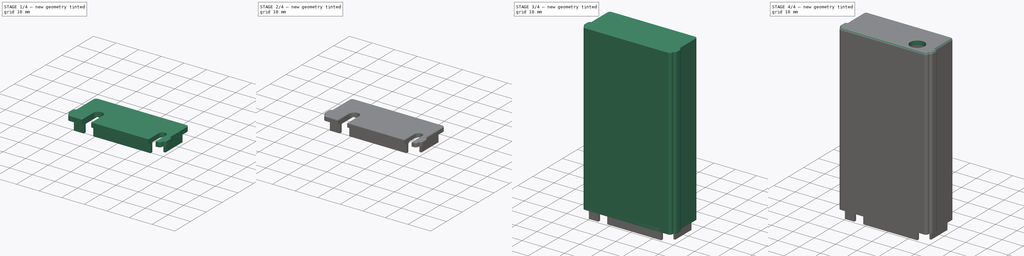
[diagram: build sequence overview — one tinted view per stage of 4, left to right]
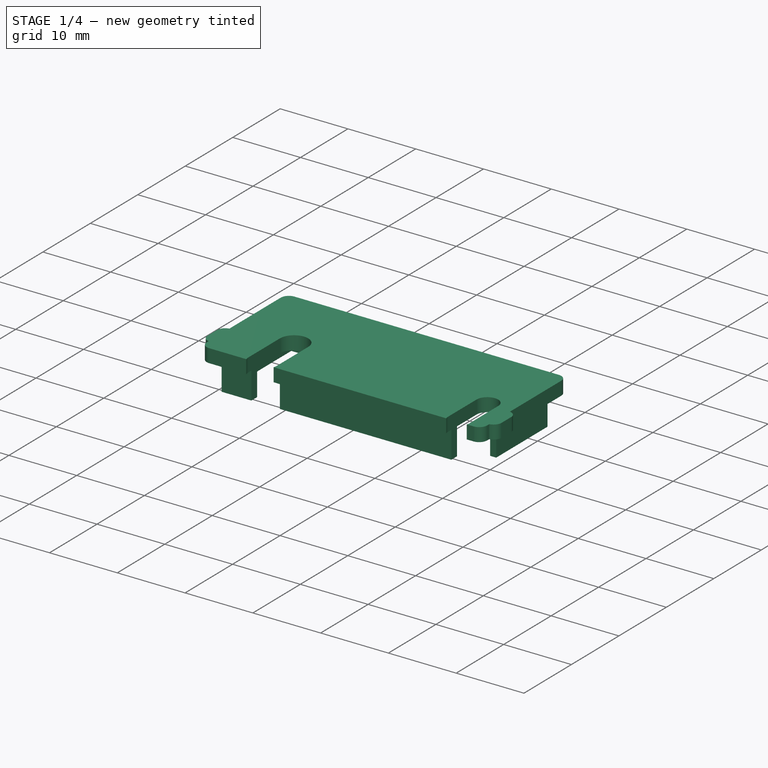
[diagram: stage 1 of 4 — iso view after this stage's code; geometry added in this stage tinted green]
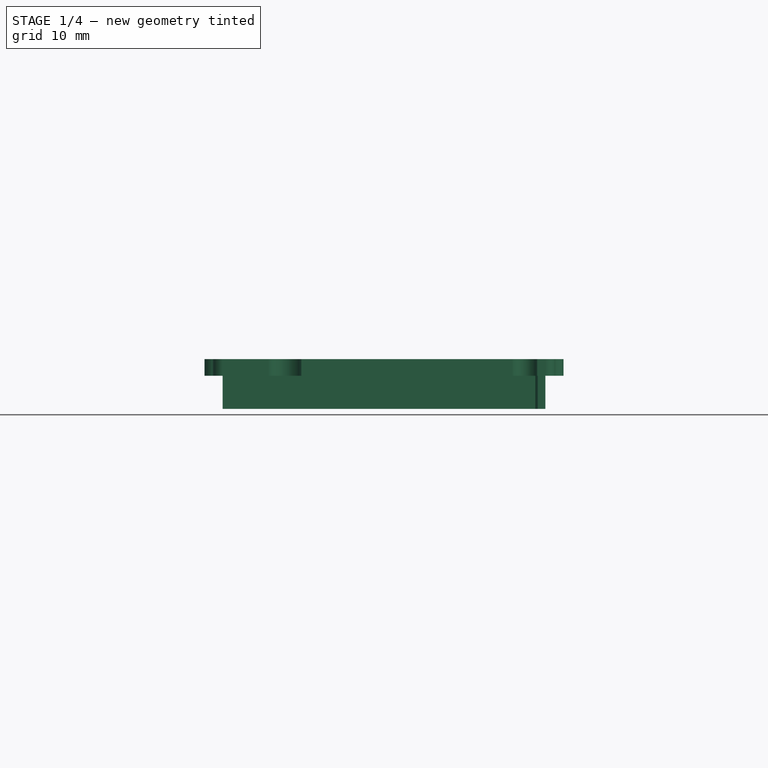
[diagram: stage 1 of 4 — front view after this stage's code; geometry added in this stage tinted green]
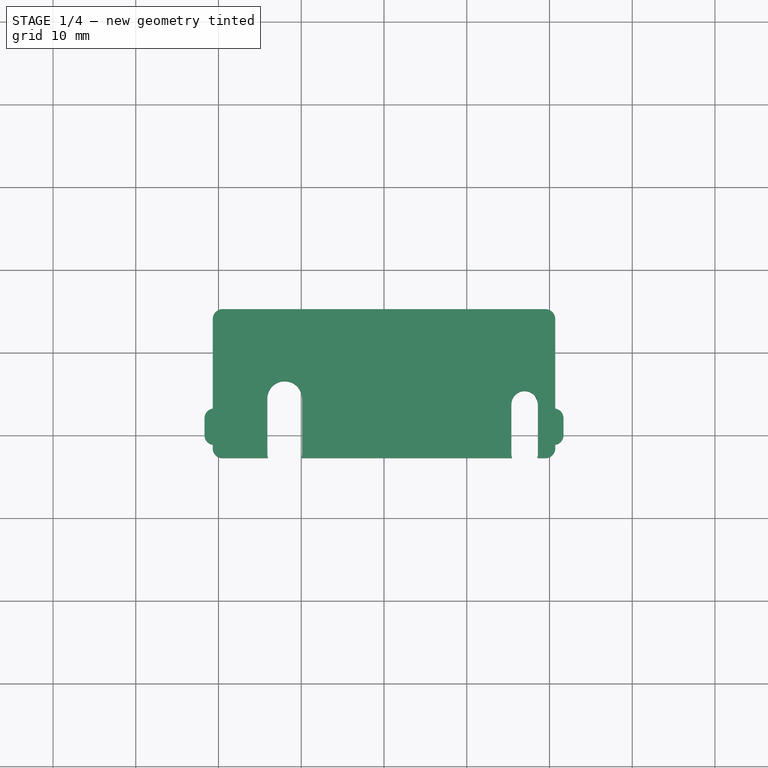
[diagram: stage 1 of 4 — top view after this stage's code; geometry added in this stage tinted green]
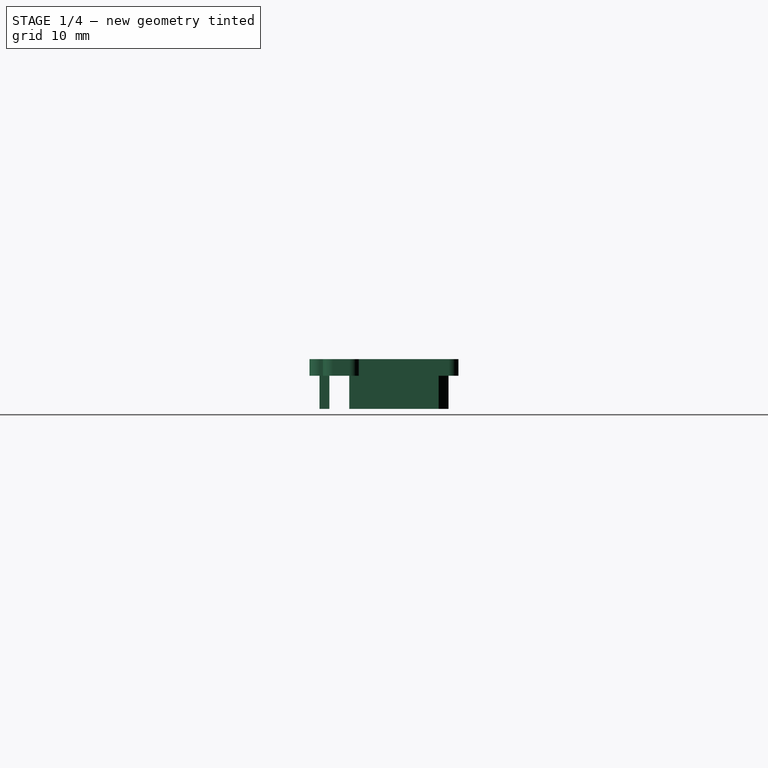
[diagram: stage 1 of 4 — right view after this stage's code; geometry added in this stage tinted green]
FCSTD DOCUMENT  (FreeCAD 0.19R)
Label: Enclosure
License: All rights reserved
LicenseURL: http://en.wikipedia.org/wiki/All_rights_reserved
objects: Sketcher::SketchObject×7, PartDesign::Pocket×4, PartDesign::Fillet×4, PartDesign::Pad×3, Part::Offset2D×2, PartDesign::FeatureBase×2, PartDesign::Body×2
note: 35 computed .brp shape members not serialized (recipe doc carries the construction recipe); baked Part::Feature solids carry a one-line shape summary decoded from their .brp

FEATURE [PartDesign::Body] Body
  BaseFeature = -> Offset2D
  Group = -> [BaseFeature,Sketch,Pad,Pocket,Fillet,Sketch001,Pocket001,Sketch002,Sketch003,Pocket002]
  Origin = -> Origin001
  Tip = -> Pocket002
FEATURE [Sketcher::SketchObject] Sketch004
  FullyConstrained = true
  MapMode = 2
  sketch-geometry (24):
    g0: LineSegment StartX=-20.5 StartY=2 StartZ=0 EndX=20.5 EndY=2 EndZ=0
    g1: LineSegment StartX=20.5 StartY=2 StartZ=0 EndX=20.5 EndY=0 EndZ=0
    g2: LineSegment StartX=20.5 StartY=0 StartZ=0 EndX=-20.5 EndY=0 EndZ=0
    g3: LineSegment StartX=-20.5 StartY=0 StartZ=0 EndX=-20.5 EndY=2 EndZ=0
    g4: LineSegment StartX=-19.5 StartY=14 StartZ=0 EndX=19.5 EndY=14 EndZ=0
    g5: LineSegment StartX=19.5 StartY=14 StartZ=0 EndX=19.5 EndY=2 EndZ=0
    g6: LineSegment StartX=19.5 StartY=2 StartZ=0 EndX=-19.5 EndY=2 EndZ=0
    g7: LineSegment StartX=-19.5 StartY=2 StartZ=0 EndX=-19.5 EndY=14 EndZ=0
    g8: LineSegment StartX=-19.5 StartY=0 StartZ=0 EndX=19.5 EndY=0 EndZ=0
    g9: LineSegment StartX=19.5 StartY=0 StartZ=0 EndX=19.5 EndY=-1.6 EndZ=0
    g10: LineSegment StartX=19.5 StartY=-1.6 StartZ=0 EndX=-19.5 EndY=-1.6 EndZ=0
    g11: LineSegment StartX=-19.5 StartY=-1.6 StartZ=0 EndX=-19.5 EndY=0 EndZ=0
    g12: LineSegment StartX=-20.5 StartY=2 StartZ=0 EndX=-19.5 EndY=2 EndZ=0
    g13: LineSegment StartX=-19.5 StartY=2 StartZ=0 EndX=-19.5 EndY=14 EndZ=0
    g14: LineSegment StartX=-19.5 StartY=14 StartZ=0 EndX=19.5 EndY=14 EndZ=0
    g15: LineSegment StartX=19.5 StartY=14 StartZ=0 EndX=19.5 EndY=2 EndZ=0
    g16: LineSegment StartX=19.5 StartY=2 StartZ=0 EndX=20.5 EndY=2 EndZ=0
    g17: LineSegment StartX=20.5 StartY=2 StartZ=0 EndX=20.5 EndY=0 EndZ=0
    g18: LineSegment StartX=20.5 StartY=0 StartZ=0 EndX=19.5 EndY=0 EndZ=0
    g19: LineSegment StartX=19.5 StartY=0 StartZ=0 EndX=19.5 EndY=-1.6 EndZ=0
    g20: LineSegment StartX=19.5 StartY=-1.6 StartZ=0 EndX=-19.5 EndY=-1.6 EndZ=0
    g21: LineSegment StartX=-19.5 StartY=-1.6 StartZ=0 EndX=-19.5 EndY=0 EndZ=0
    g22: LineSegment StartX=-19.5 StartY=0 StartZ=0 EndX=-20.5 EndY=0 EndZ=0
    g23: LineSegment StartX=-20.5 StartY=0 StartZ=0 EndX=-20.5 EndY=2 EndZ=0
  constraints (60):
    c: Coincident(g0,g1)
    c: Coincident(g1,g2)
    c: Coincident(g2,g3)
    c: Coincident(g3,g0)
    c: Horizontal(g0)
    c: Vertical(g1)
    c: Vertical(g3)
    c: DistanceX(g0,g0) = 41
    c: DistanceY(g3,g3) = 2
    c: Symmetric(g2,g1,g-2)
    c: PointOnObject(g1,g-1)
    c: Coincident(g4,g5)
    c: Coincident(g5,g6)
    c: Coincident(g6,g7)
    c: Coincident(g7,g4)
    c: Horizontal(g4)
    c: Horizontal(g6)
    c: Vertical(g5)
    c: Vertical(g7)
    c: DistanceX(g5,g0) = 1
    c: DistanceX(g0,g6) = 1
    c: DistanceY(g5,g5) = 12
    c: PointOnObject(g6,g0)
    c: Coincident(g8,g9)
    c: Coincident(g9,g10)
    c: Coincident(g10,g11)
    c: Coincident(g11,g8)
    c: Horizontal(g8)
    c: Horizontal(g10)
    c: Vertical(g9)
    c: Vertical(g11)
    c: DistanceX(g8,g1) = 1
    c: DistanceX(g2,g8) = 1
    c: DistanceY(g11,g11) = 1.6
    c: PointOnObject(g8,g2)
    c: Coincident(g0,g12)
    c: Coincident(g12,g6)
    c: Coincident(g12,g13)
    c: Coincident(g13,g4)
    c: Coincident(g13,g14)
    c: Coincident(g14,g4)
    c: Coincident(g14,g15)
    c: Coincident(g15,g5)
    c: Coincident(g15,g16)
    c: Coincident(g16,g0)
    c: Coincident(g16,g17)
    c: Coincident(g17,g1)
    c: Coincident(g17,g18)
    c: PointOnObject(g18,g2)
    c: Coincident(g18,g19)
    c: Coincident(g19,g9)
    c: Vertical(g19)
    c: Coincident(g19,g20)
    c: Coincident(g20,g10)
    c: Coincident(g20,g21)
    c: Coincident(g21,g8)
    c: Coincident(g21,g22)
    c: Coincident(g22,g2)
    c: Coincident(g22,g23)
    c: Coincident(g23,g12)
FEATURE [Part::Offset2D] Offset2D001
  Fill = false
  Intersection = false
  Join = 0
  Mode = 1
  SelfIntersection = false
  Source = -> Sketch004
  Value = 1.2
FEATURE [PartDesign::FeatureBase] BaseFeature001
  BaseFeature = -> Offset2D001
FEATURE [PartDesign::Pad] Pad001
  BaseFeature = -> BaseFeature001
  Direction = (1,1,1)
  Length = 2
  Length2 = 100
  Profile = -> BaseFeature001
  Type = 0
FEATURE [Sketcher::SketchObject] Sketch005
  ExternalGeometry = -> [Sketch004]
  FullyConstrained = false
  MapMode = 5
  Placement = pos=(0,0,0) rot=(1,0,0;3.14159rad)
  Support = -> [Pad001]
  sketch-geometry (14):
    g0: LineSegment StartX=-18.5 StartY=1.6 StartZ=0 EndX=18.5 EndY=1.6 EndZ=0
    g1: LineSegment StartX=18.5 StartY=1.6 StartZ=0 EndX=18.5 EndY=0.4 EndZ=0
    g2: LineSegment StartX=18.5 StartY=0.4 StartZ=0 EndX=-18.5 EndY=0.4 EndZ=0
    g3: LineSegment StartX=-18.5 StartY=0.4 StartZ=0 EndX=-18.5 EndY=1.6 EndZ=0
    g4: LineSegment StartX=-18.3 StartY=-12.8 StartZ=0 EndX=18.3 EndY=-12.8 EndZ=0
    g5: LineSegment StartX=18.3 StartY=-14 StartZ=0 EndX=-18.3 EndY=-14 EndZ=0
    g6: LineSegment StartX=-19.5 StartY=-12.8 StartZ=0 EndX=-19.5 EndY=-2 EndZ=0
    g7: LineSegment StartX=-19.5 StartY=-2 StartZ=0 EndX=-18.3 EndY=-2 EndZ=0
    g8: LineSegment StartX=-18.3 StartY=-2 StartZ=0 EndX=-18.3 EndY=-12.8 EndZ=0
    g9: LineSegment StartX=19.5 StartY=-2 StartZ=0 EndX=18.3 EndY=-2 EndZ=0
    g10: LineSegment StartX=-19.5 StartY=-12.8 StartZ=0 EndX=-18.3 EndY=-14 EndZ=0
    g11: LineSegment StartX=18.3 StartY=-14 StartZ=0 EndX=19.5 EndY=-12.8 EndZ=0
    g12: LineSegment StartX=18.3 StartY=-2 StartZ=0 EndX=18.3 EndY=-12.8 EndZ=0
    g13: LineSegment StartX=19.5 StartY=-2 StartZ=0 EndX=19.5 EndY=-12.8 EndZ=0
  constraints (32):
    c: Coincident(g0,g1)
    c: Coincident(g1,g2)
    c: Coincident(g2,g3)
    c: Coincident(g3,g0)
    c: Horizontal(g2)
    c: Vertical(g1)
    c: Vertical(g3)
    c: DistanceY(g0,g-4) = 0
    c: DistanceX(g-4,g0) = 1
    c: Symmetric(g0,g0,g-2)
    c: DistanceY(g1,g0) = 1.2
    c: Horizontal(g5)
    c: DistanceY(g-5,g5) = 0
    c: DistanceX(g-5,g5) = 1.2
    c: Symmetric(g4,g4,g-2)
    c: DistanceY(g5,g4) = 1.2
    c: Coincident(g6,g7)
    c: Coincident(g7,g8)
    c: Horizontal(g7)
    c: Vertical(g6)
    c: Vertical(g8)
    c: Horizontal(g9)
    c: Coincident(g6,g-8)
    c: Coincident(g10,g5)
    c: Coincident(g4,g8)
    c: DistanceX(g6,g4) = 1.2
    c: Coincident(g12,g9)
    c: Coincident(g12,g4)
    c: Vertical(g12)
    c: Coincident(g13,g9)
    c: Coincident(g13,g11)
    c: Vertical(g13)
FEATURE [PartDesign::Pad] Pad002
  BaseFeature = -> Pad001
  Direction = (1,1,1)
  Length = 4
  Length2 = 100
  Profile = -> Sketch005
  Type = 0
FEATURE [Sketcher::SketchObject] Sketch006
  FullyConstrained = true
  MapMode = 5
  Placement = pos=(0,0,0) rot=(1,0,0;3.14159rad)
  Support = -> [Pad002]
  sketch-geometry (8):
    g0: ArcOfCircle CenterX=-12 CenterY=2.21 CenterZ=0 NormalX=0 NormalY=0 NormalZ=1 AngleXU=0 Radius=2.1 StartAngle=3.52e-14 EndAngle=3.14159
    g1: ArcOfCircle CenterX=-12 CenterY=-4.39 CenterZ=0 NormalX=0 NormalY=0 NormalZ=1 AngleXU=0 Radius=2.1 StartAngle=3.14159 EndAngle=6.28319
    g2: LineSegment StartX=-14.1 StartY=2.21 StartZ=0 EndX=-14.1 EndY=-4.39 EndZ=0
    g3: LineSegment StartX=-9.9 StartY=2.21 StartZ=0 EndX=-9.9 EndY=-4.39 EndZ=0
    g4: ArcOfCircle CenterX=17 CenterY=2.3 CenterZ=0 NormalX=0 NormalY=0 NormalZ=1 AngleXU=0 Radius=1.6 StartAngle=3.39e-14 EndAngle=3.14159
    g5: ArcOfCircle CenterX=17 CenterY=-3.7 CenterZ=0 NormalX=0 NormalY=0 NormalZ=1 AngleXU=0 Radius=1.6 StartAngle=3.14159 EndAngle=6.28319
    g6: LineSegment StartX=15.4 StartY=2.3 StartZ=0 EndX=15.4 EndY=-3.7 EndZ=0
    g7: LineSegment StartX=18.6 StartY=2.3 StartZ=0 EndX=18.6 EndY=-3.7 EndZ=0
  constraints (20):
    c: Tangent(g0,g3) = 1.5708
    c: Tangent(g0,g2) = -1.5708
    c: Tangent(g2,g1) = -1.5708
    c: Tangent(g3,g1) = 1.5708
    c: Vertical(g2)
    c: Equal(g0,g1)
    c: DistanceX(g0,g0) = 4.2
    c: Tangent(g4,g7) = 1.5708
    c: Tangent(g4,g6) = -1.5708
    c: Tangent(g6,g5) = -1.5708
    c: Tangent(g7,g5) = 1.5708
    c: Vertical(g6)
    c: Equal(g4,g5)
    c: DistanceX(g4,g4) = 3.2
    c: DistanceX(g0,g-1) = 12
    c: DistanceY(g-1,g0) = 2.21
    c: DistanceY(g1,g0) = 6.6
    c: DistanceY(g5,g4) = 6
    c: DistanceY(g-1,g4) = 2.3
    c: DistanceX(g-1,g5) = 17
FEATURE [PartDesign::Pocket] Pocket003
  BaseFeature = -> Pad002
  Length = 5
  Length2 = 5
  Profile = -> Sketch006
  Type = 4
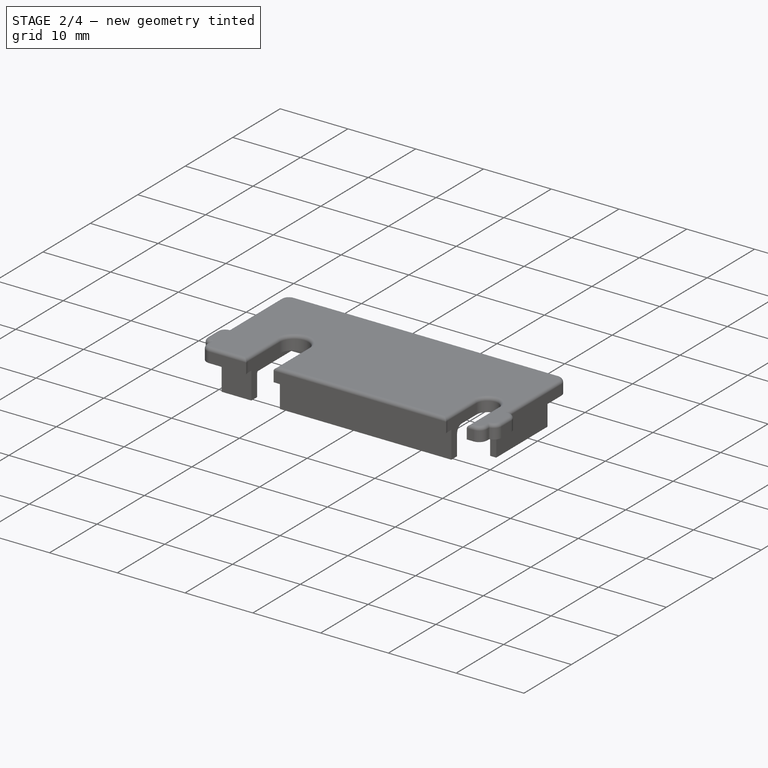
[diagram: stage 2 of 4 — iso view after this stage's code; geometry added in this stage tinted green]
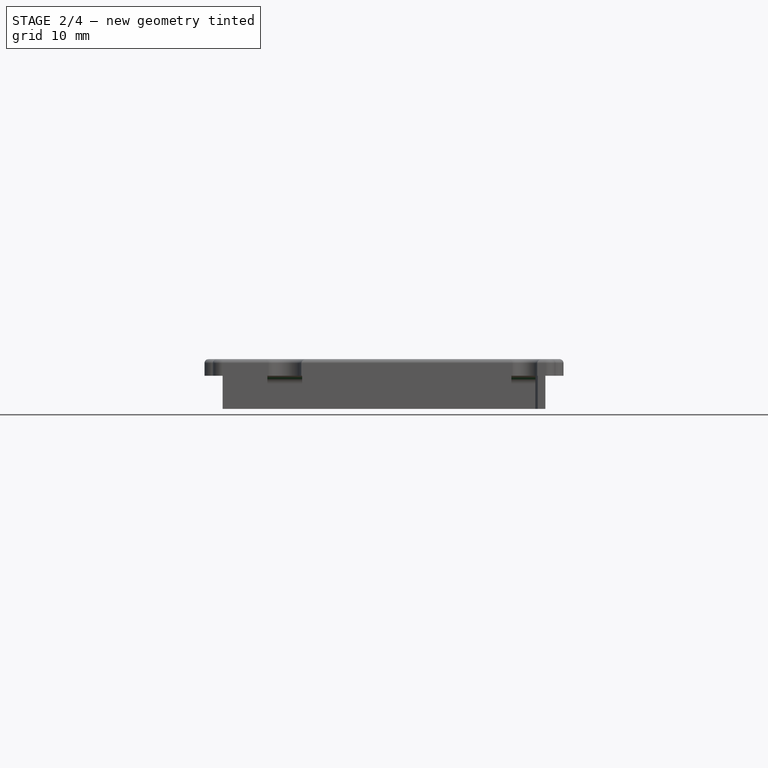
[diagram: stage 2 of 4 — front view after this stage's code; geometry added in this stage tinted green]
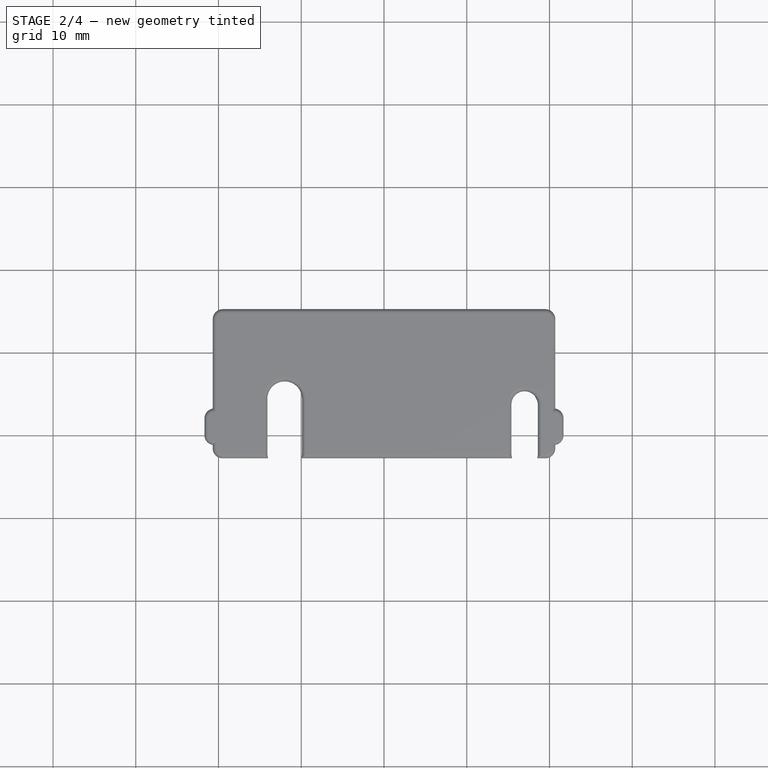
[diagram: stage 2 of 4 — top view after this stage's code; geometry added in this stage tinted green]
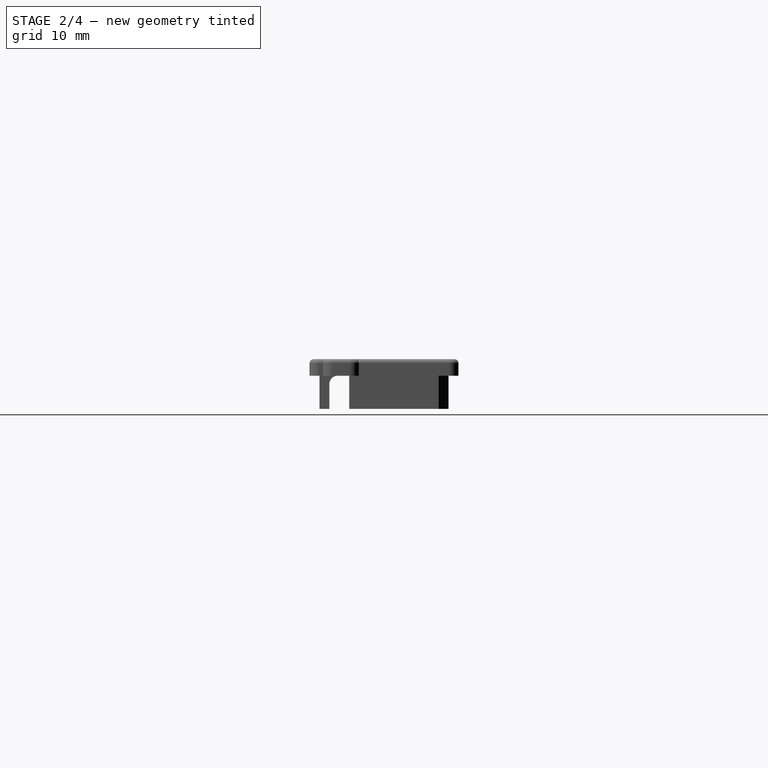
[diagram: stage 2 of 4 — right view after this stage's code; geometry added in this stage tinted green]
FEATURE [PartDesign::Fillet] Fillet001
  Base = -> Pocket003 [Face5]
  BaseFeature = -> Pocket003
  Radius = 0.49
  SupportTransform = false
FEATURE [PartDesign::Fillet] Fillet002
  Base = -> Fillet001 [Edge31,Edge35]
  BaseFeature = -> Fillet001
  Radius = 1
  SupportTransform = false
FEATURE [PartDesign::Fillet] Fillet003
  Base = -> Fillet002 [Edge18]
  BaseFeature = -> Fillet002
  Radius = 1
  SupportTransform = false
FEATURE [PartDesign::Body] Body001
  BaseFeature = -> Offset2D001
  Group = -> [BaseFeature001,Sketch004,Pad001,Sketch005,Pad002,Sketch006,Pocket003,Fillet001,Fillet002,Fillet003]
  Origin = -> Origin
  Tip = -> Fillet003
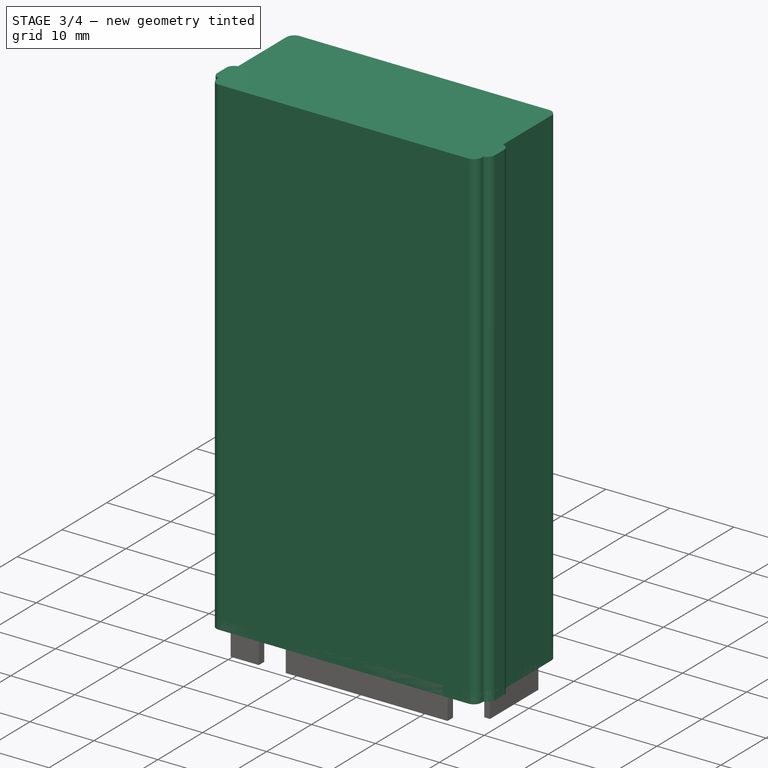
[diagram: stage 3 of 4 — iso view after this stage's code; geometry added in this stage tinted green]
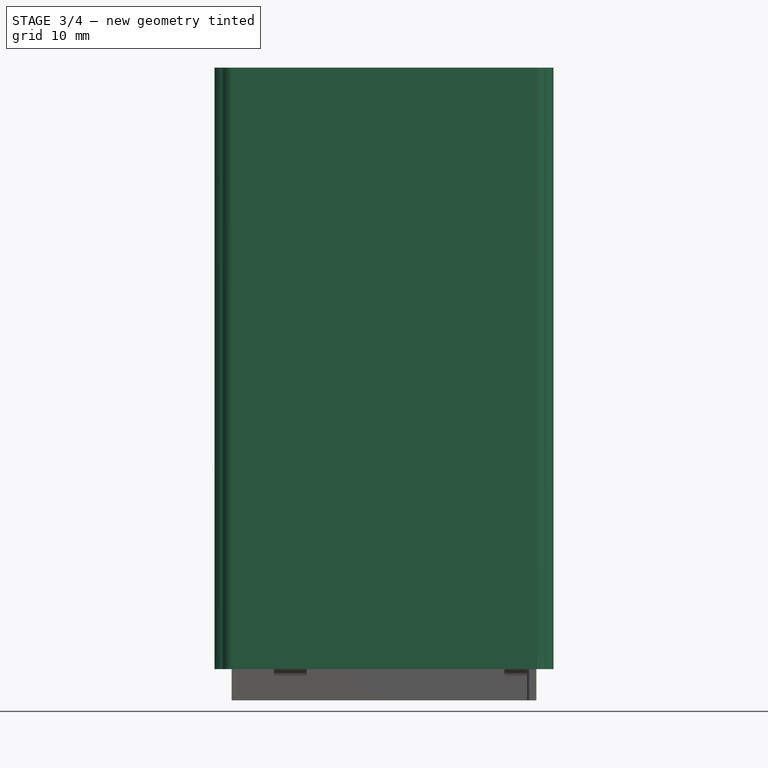
[diagram: stage 3 of 4 — front view after this stage's code; geometry added in this stage tinted green]
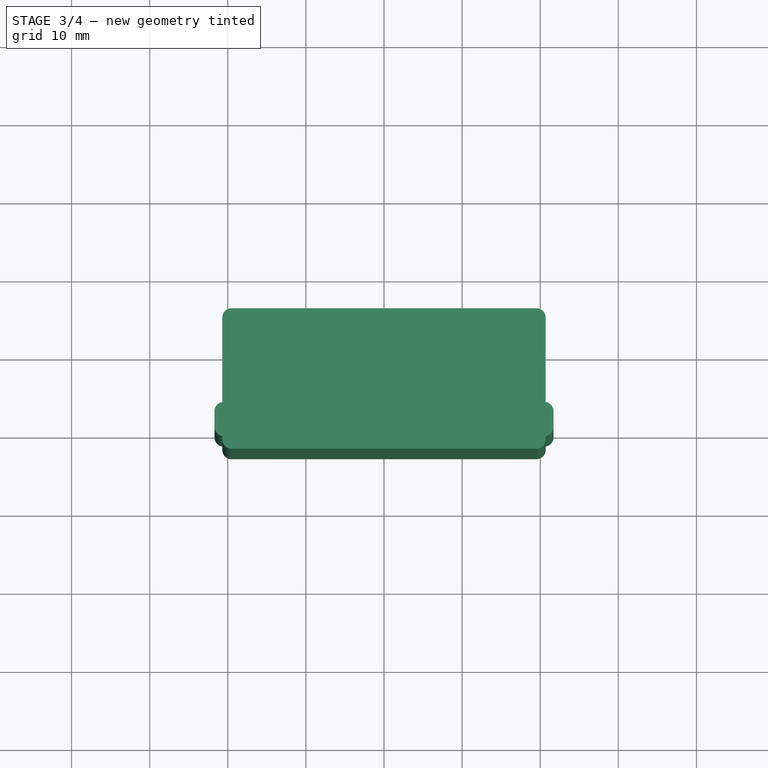
[diagram: stage 3 of 4 — top view after this stage's code; geometry added in this stage tinted green]
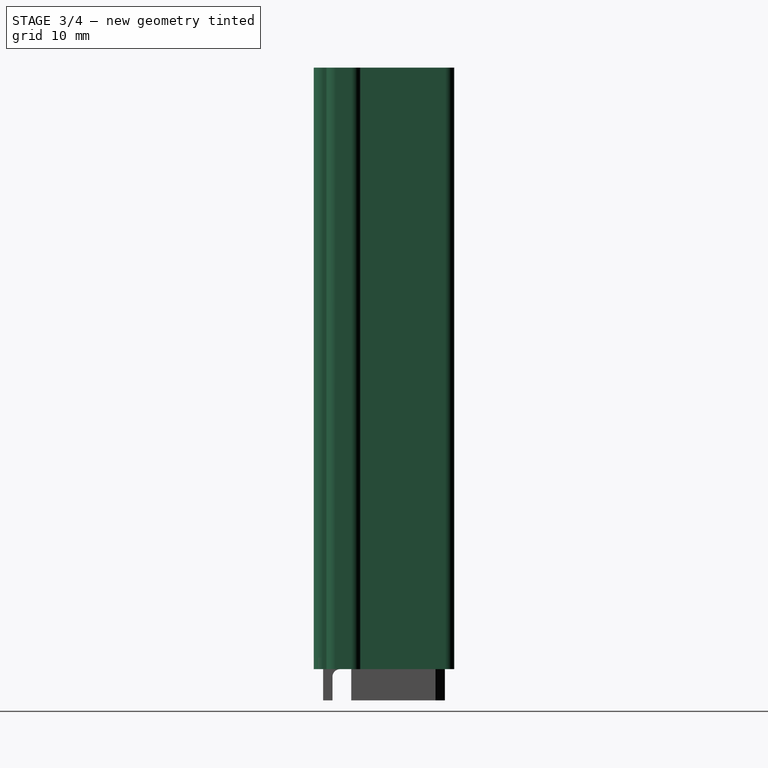
[diagram: stage 3 of 4 — right view after this stage's code; geometry added in this stage tinted green]
FEATURE [Sketcher::SketchObject] Sketch
  FullyConstrained = true
  MapMode = 2
  sketch-geometry (24):
    g0: LineSegment StartX=-20.5 StartY=2 StartZ=0 EndX=20.5 EndY=2 EndZ=0
    g1: LineSegment StartX=20.5 StartY=2 StartZ=0 EndX=20.5 EndY=0 EndZ=0
    g2: LineSegment StartX=20.5 StartY=0 StartZ=0 EndX=-20.5 EndY=0 EndZ=0
    g3: LineSegment StartX=-20.5 StartY=0 StartZ=0 EndX=-20.5 EndY=2 EndZ=0
    g4: LineSegment StartX=-19.5 StartY=14 StartZ=0 EndX=19.5 EndY=14 EndZ=0
    g5: LineSegment StartX=19.5 StartY=14 StartZ=0 EndX=19.5 EndY=2 EndZ=0
    g6: LineSegment StartX=19.5 StartY=2 StartZ=0 EndX=-19.5 EndY=2 EndZ=0
    g7: LineSegment StartX=-19.5 StartY=2 StartZ=0 EndX=-19.5 EndY=14 EndZ=0
    g8: LineSegment StartX=-19.5 StartY=0 StartZ=0 EndX=19.5 EndY=0 EndZ=0
    g9: LineSegment StartX=19.5 StartY=0 StartZ=0 EndX=19.5 EndY=-1.6 EndZ=0
    g10: LineSegment StartX=19.5 StartY=-1.6 StartZ=0 EndX=-19.5 EndY=-1.6 EndZ=0
    g11: LineSegment StartX=-19.5 StartY=-1.6 StartZ=0 EndX=-19.5 EndY=0 EndZ=0
    g12: LineSegment StartX=-20.5 StartY=2 StartZ=0 EndX=-19.5 EndY=2 EndZ=0
    g13: LineSegment StartX=-19.5 StartY=2 StartZ=0 EndX=-19.5 EndY=14 EndZ=0
    g14: LineSegment StartX=-19.5 StartY=14 StartZ=0 EndX=19.5 EndY=14 EndZ=0
    g15: LineSegment StartX=19.5 StartY=14 StartZ=0 EndX=19.5 EndY=2 EndZ=0
    g16: LineSegment StartX=19.5 StartY=2 StartZ=0 EndX=20.5 EndY=2 EndZ=0
    g17: LineSegment StartX=20.5 StartY=2 StartZ=0 EndX=20.5 EndY=0 EndZ=0
    g18: LineSegment StartX=20.5 StartY=0 StartZ=0 EndX=19.5 EndY=0 EndZ=0
    g19: LineSegment StartX=19.5 StartY=0 StartZ=0 EndX=19.5 EndY=-1.6 EndZ=0
    g20: LineSegment StartX=19.5 StartY=-1.6 StartZ=0 EndX=-19.5 EndY=-1.6 EndZ=0
    g21: LineSegment StartX=-19.5 StartY=-1.6 StartZ=0 EndX=-19.5 EndY=0 EndZ=0
    g22: LineSegment StartX=-19.5 StartY=0 StartZ=0 EndX=-20.5 EndY=0 EndZ=0
    g23: LineSegment StartX=-20.5 StartY=0 StartZ=0 EndX=-20.5 EndY=2 EndZ=0
  constraints (60):
    c: Coincident(g0,g1)
    c: Coincident(g1,g2)
    c: Coincident(g2,g3)
    c: Coincident(g3,g0)
    c: Horizontal(g0)
    c: Vertical(g1)
    c: Vertical(g3)
    c: DistanceX(g0,g0) = 41
    c: DistanceY(g3,g3) = 2
    c: Symmetric(g2,g1,g-2)
    c: PointOnObject(g1,g-1)
    c: Coincident(g4,g5)
    c: Coincident(g5,g6)
    c: Coincident(g6,g7)
    c: Coincident(g7,g4)
    c: Horizontal(g4)
    c: Horizontal(g6)
    c: Vertical(g5)
    c: Vertical(g7)
    c: DistanceX(g5,g0) = 1
    c: DistanceX(g0,g6) = 1
    c: DistanceY(g5,g5) = 12
    c: PointOnObject(g6,g0)
    c: Coincident(g8,g9)
    c: Coincident(g9,g10)
    c: Coincident(g10,g11)
    c: Coincident(g11,g8)
    c: Horizontal(g8)
    c: Horizontal(g10)
    c: Vertical(g9)
    c: Vertical(g11)
    c: DistanceX(g8,g1) = 1
    c: DistanceX(g2,g8) = 1
    c: DistanceY(g11,g11) = 1.6
    c: PointOnObject(g8,g2)
    c: Coincident(g0,g12)
    c: Coincident(g12,g6)
    c: Coincident(g12,g13)
    c: Coincident(g13,g4)
    c: Coincident(g13,g14)
    c: Coincident(g14,g4)
    c: Coincident(g14,g15)
    c: Coincident(g15,g5)
    c: Coincident(g15,g16)
    c: Coincident(g16,g0)
    c: Coincident(g16,g17)
    c: Coincident(g17,g1)
    c: Coincident(g17,g18)
    c: PointOnObject(g18,g2)
    c: Coincident(g18,g19)
    c: Coincident(g19,g9)
    c: Vertical(g19)
    c: Coincident(g19,g20)
    c: Coincident(g20,g10)
    c: Coincident(g20,g21)
    c: Coincident(g21,g8)
    c: Coincident(g21,g22)
    c: Coincident(g22,g2)
    c: Coincident(g22,g23)
    c: Coincident(g23,g12)
FEATURE [Part::Offset2D] Offset2D
  Fill = false
  Intersection = false
  Join = 0
  Mode = 1
  SelfIntersection = false
  Source = -> Sketch
  Value = 1.2
FEATURE [PartDesign::FeatureBase] BaseFeature
  BaseFeature = -> Offset2D
FEATURE [PartDesign::Pad] Pad
  BaseFeature = -> BaseFeature
  Direction = (1,1,1)
  Length = 77
  Length2 = 100
  Profile = -> BaseFeature
  Type = 0
FEATURE [PartDesign::Pocket] Pocket
  BaseFeature = -> Pad
  Length = 75
  Length2 = 100
  Profile = -> Sketch
  Reversed = true
  Type = 0
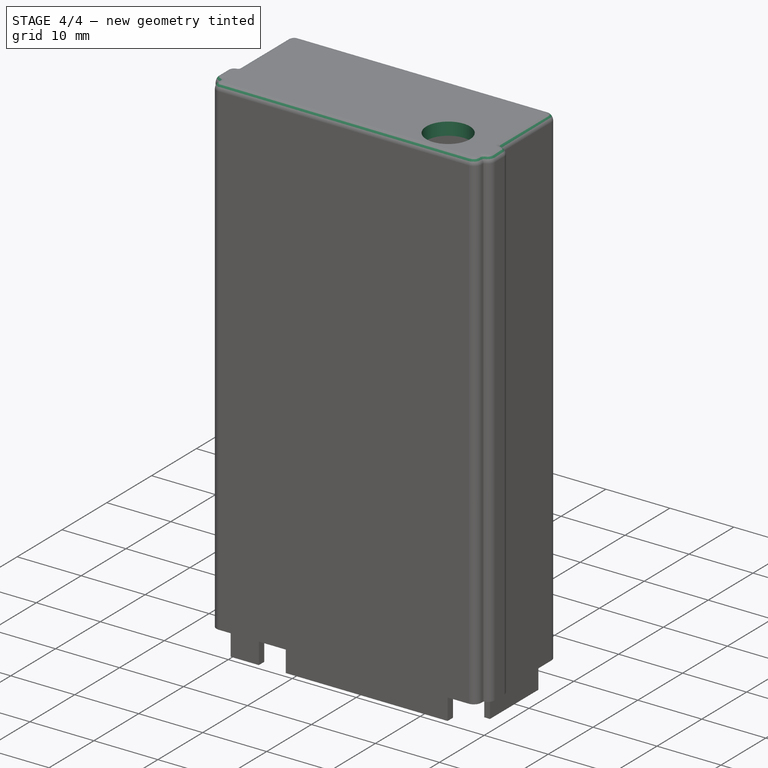
[diagram: stage 4 of 4 — iso view after this stage's code; geometry added in this stage tinted green]
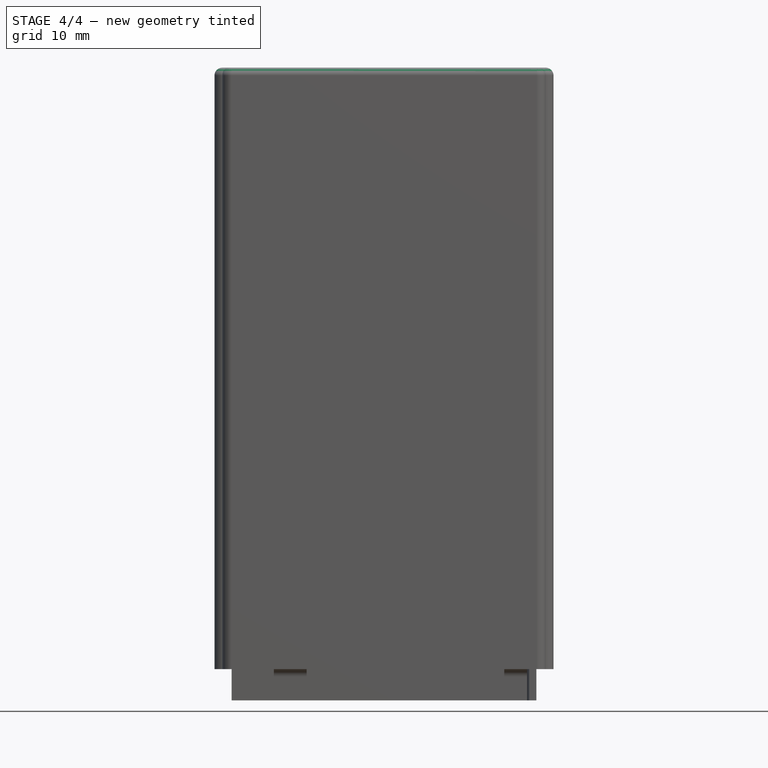
[diagram: stage 4 of 4 — front view after this stage's code; geometry added in this stage tinted green]
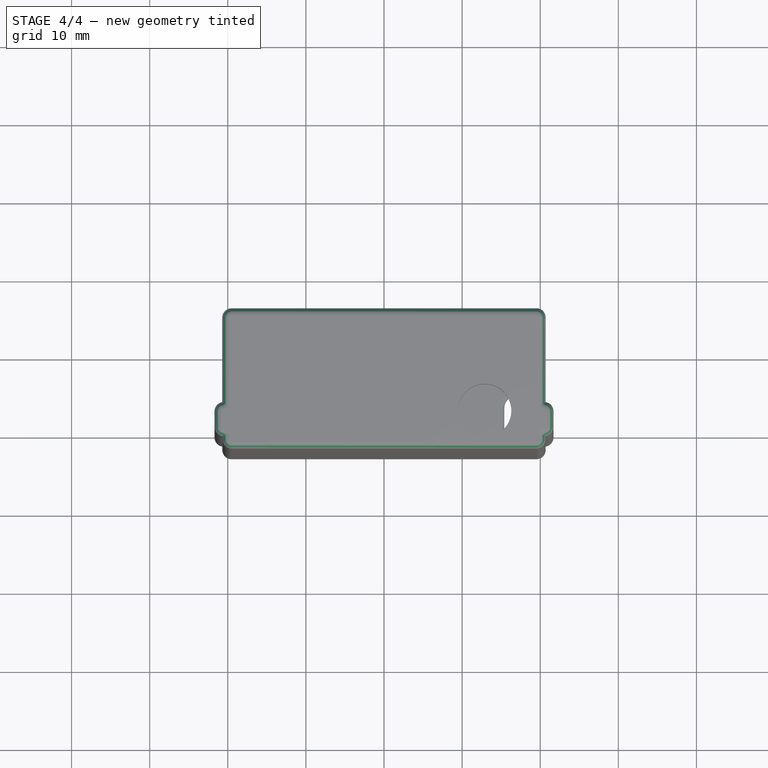
[diagram: stage 4 of 4 — top view after this stage's code; geometry added in this stage tinted green]
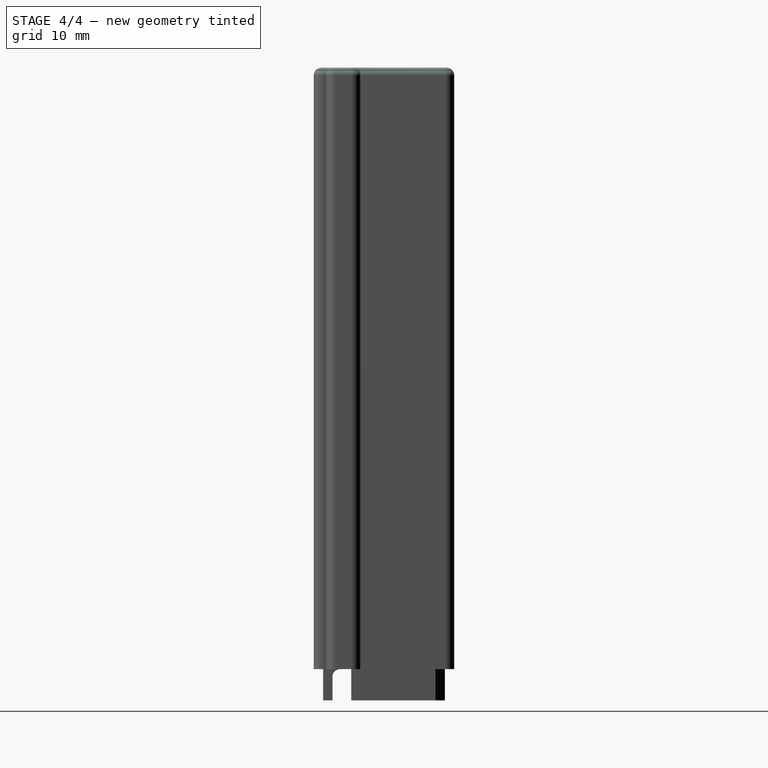
[diagram: stage 4 of 4 — right view after this stage's code; geometry added in this stage tinted green]
FEATURE [PartDesign::Fillet] Fillet
  Base = -> Pocket [Face5]
  BaseFeature = -> Pocket
  Radius = 1
  SupportTransform = false
FEATURE [Sketcher::SketchObject] Sketch001
  FullyConstrained = true
  MapMode = 5
  Placement = pos=(0,0,77) rot=(0,0,1;0rad)
  Support = -> [Fillet]
  sketch-geometry (1):
    g0: Circle CenterX=12.9 CenterY=2.1 CenterZ=0 NormalX=0 NormalY=0 NormalZ=1 AngleXU=0 Radius=3.4
  constraints (3):
    c: DistanceX(g-1,g0) = 12.9
    c: DistanceY(g-1,g0) = 2.1
    c: Radius(g0) = 3.4
FEATURE [PartDesign::Pocket] Pocket001
  BaseFeature = -> Fillet
  Length = 2
  Length2 = 100
  Profile = -> Sketch001
  Type = 0
FEATURE [Sketcher::SketchObject] Sketch002
  FullyConstrained = false
  MapMode = 5
  Placement = pos=(0,15.2,0) rot=(0,0.707107,0.707107;3.14159rad)
  Support = -> [Pocket001]
  sketch-geometry (5):
    g0: LineSegment StartX=-16.2 StartY=0 StartZ=0 EndX=-16.2 EndY=80.9744 EndZ=0
    g1: ArcOfCircle CenterX=-16.2 CenterY=9.5 CenterZ=0 NormalX=0 NormalY=0 NormalZ=1 AngleXU=0 Radius=2 StartAngle=3.14159 EndAngle=6.28319
    g2: ArcOfCircle CenterX=-16.2 CenterY=21.5 CenterZ=0 NormalX=0 NormalY=0 NormalZ=1 AngleXU=0 Radius=2 StartAngle=0 EndAngle=3.14159
    g3: LineSegment StartX=-14.2 StartY=9.5 StartZ=0 EndX=-14.2 EndY=21.5 EndZ=0
    g4: LineSegment StartX=-18.2 StartY=9.5 StartZ=0 EndX=-18.2 EndY=21.5 EndZ=0
  constraints (13):
    c: PointOnObject(g0,g-1)
    c: Vertical(g0)
    c: DistanceX(g0,g-1) = 16.2
    c: Tangent(g1,g4) = 1.5708
    c: Tangent(g1,g3) = -1.5708
    c: Tangent(g3,g2) = -1.5708
    c: Tangent(g4,g2) = 1.5708
    c: Vertical(g3)
    c: Equal(g1,g2)
    c: PointOnObject(g1,g0)
    c: DistanceY(g0,g1) = 9.5
    c: DistanceY(g1,g2) = 12
    c: DistanceX(g2,g2) = 4
FEATURE [Sketcher::SketchObject] Sketch003
  FullyConstrained = false
  MapMode = 5
  Placement = pos=(0,15.2,0) rot=(0,0.707107,0.707107;3.14159rad)
  Support = -> [Pocket001]
  sketch-geometry (5):
    g0: LineSegment StartX=-32.7276 StartY=39.5 StartZ=0 EndX=46.706 EndY=39.5 EndZ=0
    g1: ArcOfCircle CenterX=14.5 CenterY=39.5 CenterZ=0 NormalX=0 NormalY=0 NormalZ=1 AngleXU=0 Radius=1.6 StartAngle=4.71239 EndAngle=7.85398
    g2: ArcOfCircle CenterX=1 CenterY=39.5 CenterZ=0 NormalX=0 NormalY=0 NormalZ=1 AngleXU=0 Radius=1.6 StartAngle=1.5708 EndAngle=4.71239
    g3: LineSegment StartX=14.5 StartY=41.1 StartZ=0 EndX=1 EndY=41.1 EndZ=0
    g4: LineSegment StartX=14.5 StartY=37.9 StartZ=0 EndX=1 EndY=37.9 EndZ=0
  constraints (12):
    c: Horizontal(g0)
    c: DistanceY(g-1,g0) = 39.5
    c: Tangent(g1,g4) = 1.5708
    c: Tangent(g1,g3) = -1.5708
    c: Tangent(g3,g2) = -1.5708
    c: Tangent(g4,g2) = 1.5708
    c: Horizontal(g3)
    c: Equal(g1,g2)
    c: PointOnObject(g1,g0)
    c: DistanceX(g-1,g2) = 1
    c: DistanceX(g2,g1) = 13.5
    c: DistanceY(g1,g1) = 3.2
FEATURE [PartDesign::Pocket] Pocket002
  BaseFeature = -> Pocket001
  Length = 1.2
  Length2 = 100
  Profile = -> Sketch003
  Type = 0
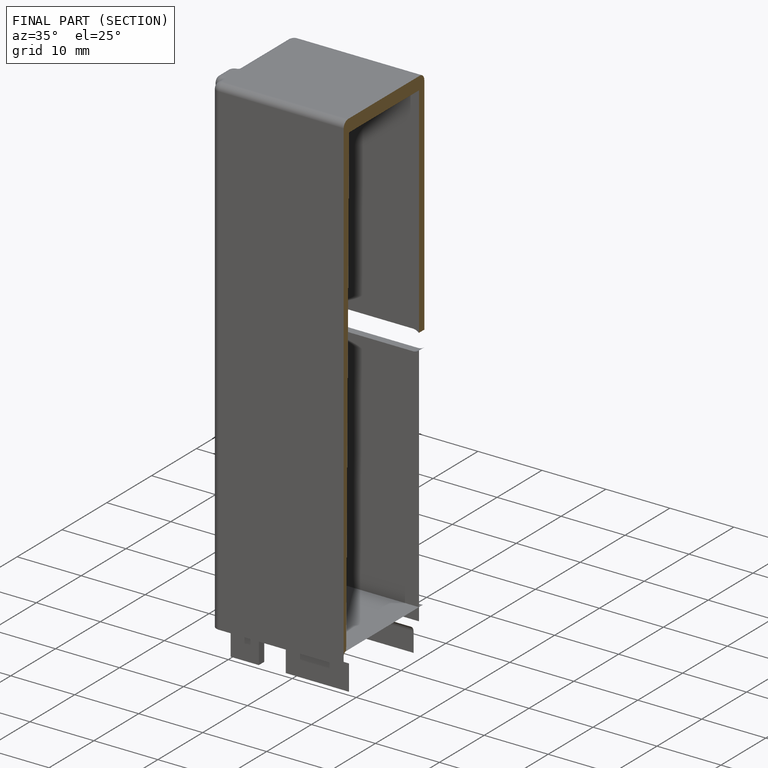
[diagram: finished part — half-section view (interior)]
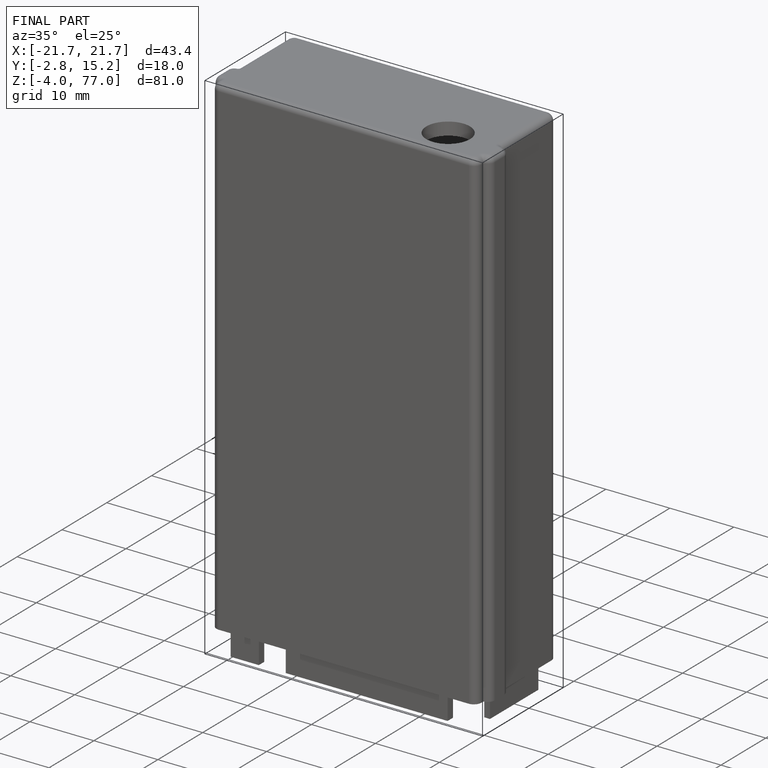
[diagram: finished part — iso view with bounding-box wireframe]
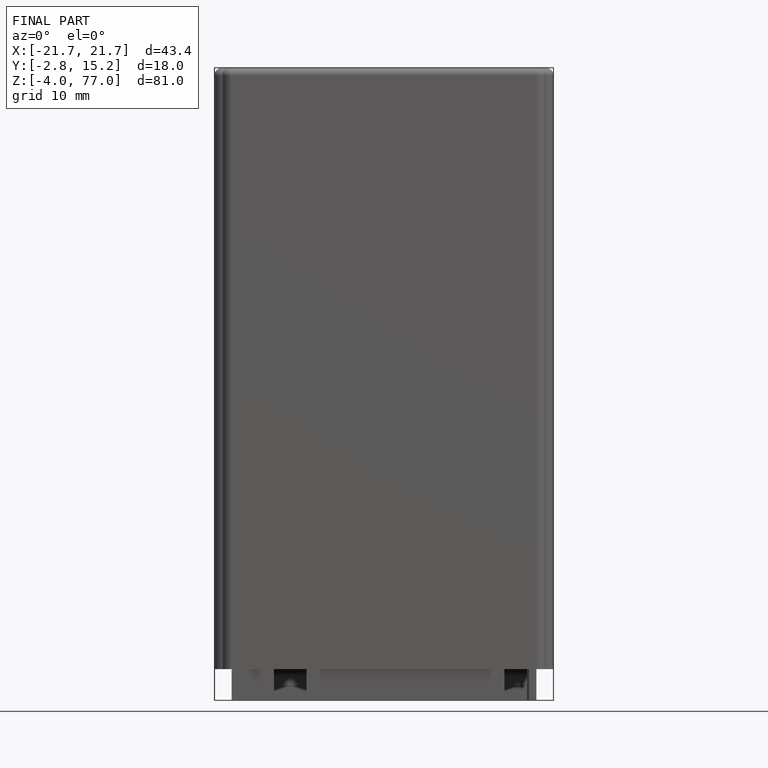
[diagram: finished part — front view with bounding-box wireframe]
